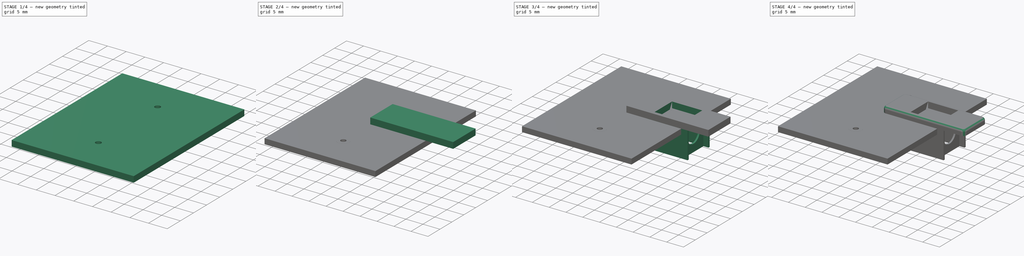
[diagram: build sequence overview — one tinted view per stage of 4, left to right]
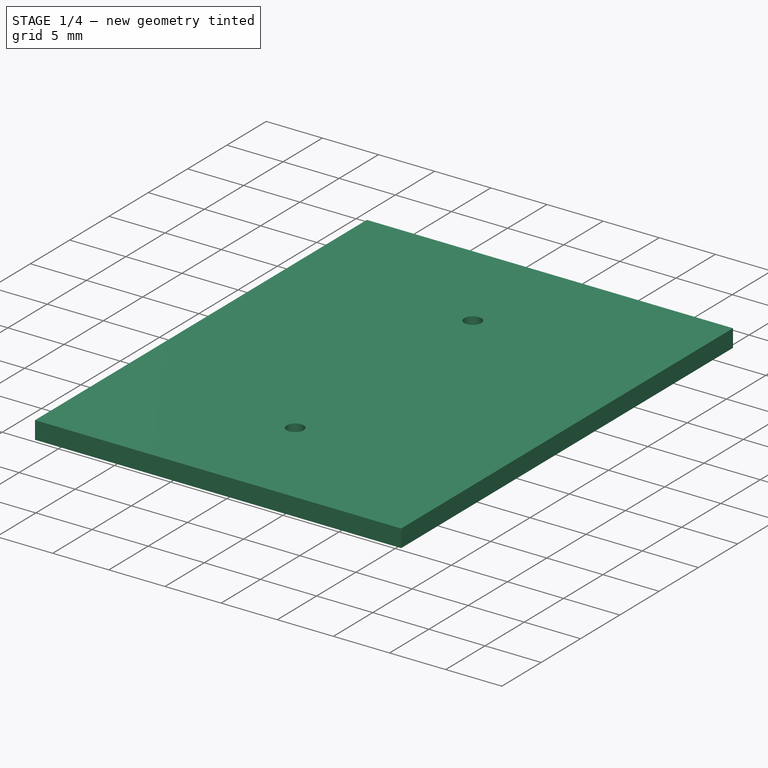
[diagram: stage 1 of 4 — iso view after this stage's code; geometry added in this stage tinted green]
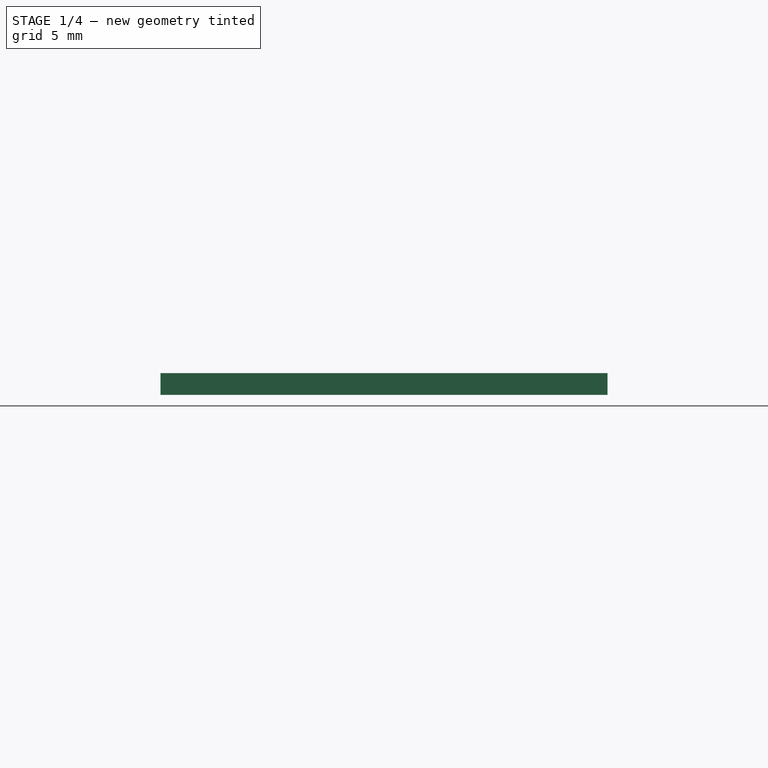
[diagram: stage 1 of 4 — front view after this stage's code; geometry added in this stage tinted green]
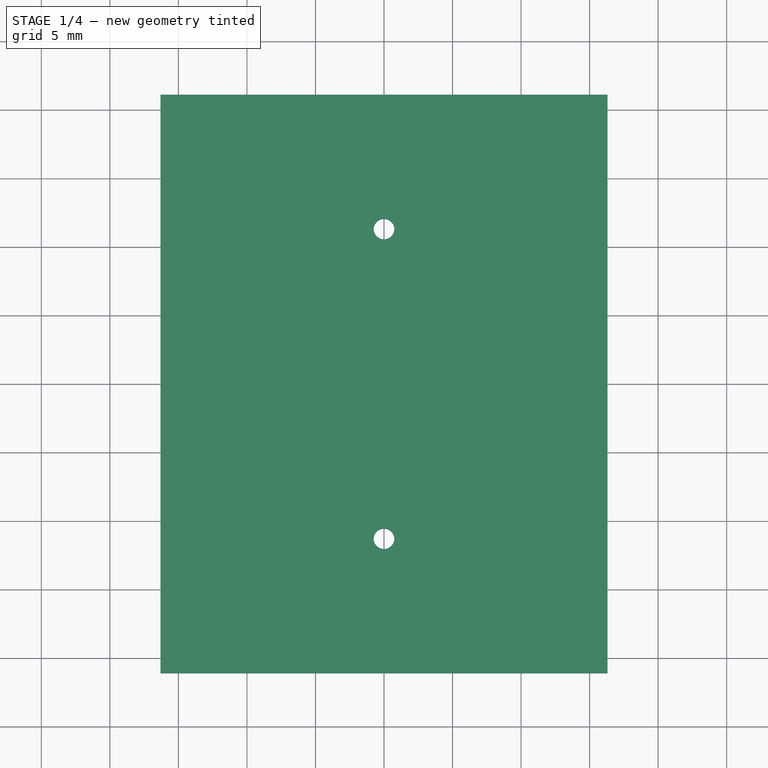
[diagram: stage 1 of 4 — top view after this stage's code; geometry added in this stage tinted green]
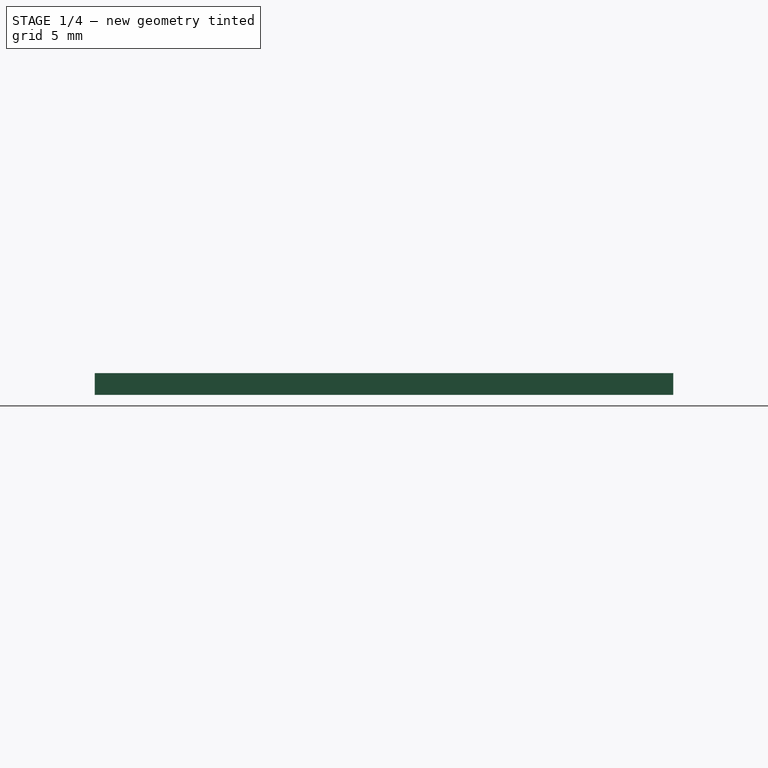
[diagram: stage 1 of 4 — right view after this stage's code; geometry added in this stage tinted green]
FCSTD DOCUMENT  (FreeCAD 0.17R13522 (Git))
Label: FUSE-COVER-BS232_ksu
License: All rights reserved
LicenseURL: http://fr.wikipedia.org/wiki/<copyright redacted>
objects: Part::FeaturePython×6, Sketcher::SketchObject×4, PartDesign::Pad×2, PartDesign::Pocket×2, PartDesign::Fillet×2, Spreadsheet::Sheet×1, App::DocumentObjectGroup×1, Part::Feature×1
note: 21 computed .brp shape members not serialized (recipe doc carries the construction recipe); baked Part::Feature solids carry a one-line shape summary decoded from their .brp

FEATURE [Part::FeaturePython] THPs  label="PTHs"  # a2plus imported part (geometry in sourceFile) (typed FeaturePython)
  Placement = pos=(0,0,0) rot=(0,0,1;1.5708rad)
  fixedPosition = true
FEATURE [Part::FeaturePython] newPCB  label="Pcb"  # a2plus imported part (geometry in sourceFile) (typed FeaturePython)
  Placement = pos=(0,0,0) rot=(0,0,1;1.5708rad)
  fixedPosition = true
FEATURE [App::DocumentObjectGroup] FUSE_22_6_5x20_PTF78_fp
  Group = -> [FCrtYd_lines,Filk_lines,TopPads,BotPads,THPs,newPCB]
FEATURE [Part::Feature] Shape001  label="FUSE-COVER-BS232"
  shape: bbox 9.4 x 24.4 x 9.8 mm, 54 faces (baked)
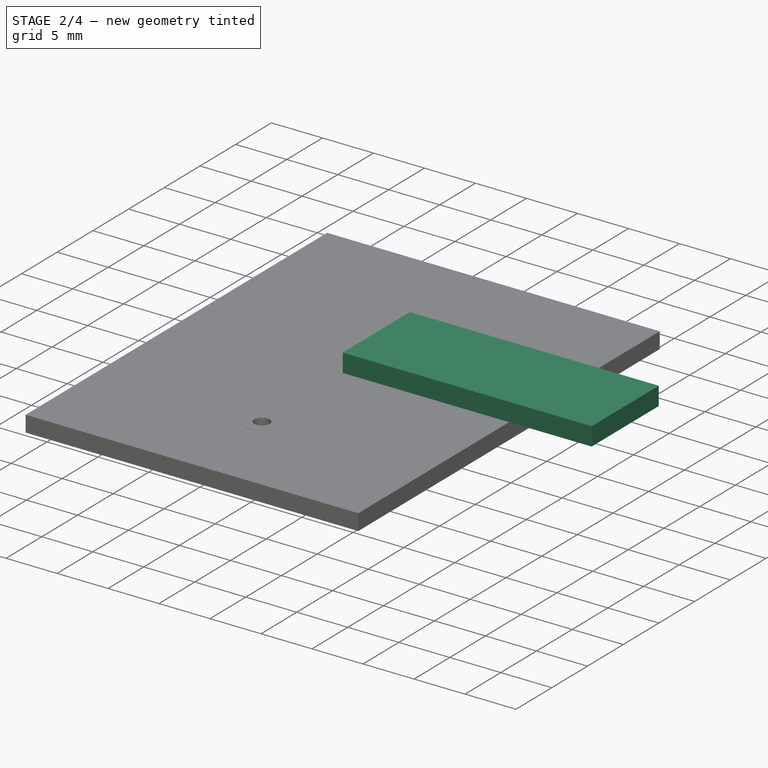
[diagram: stage 2 of 4 — iso view after this stage's code; geometry added in this stage tinted green]
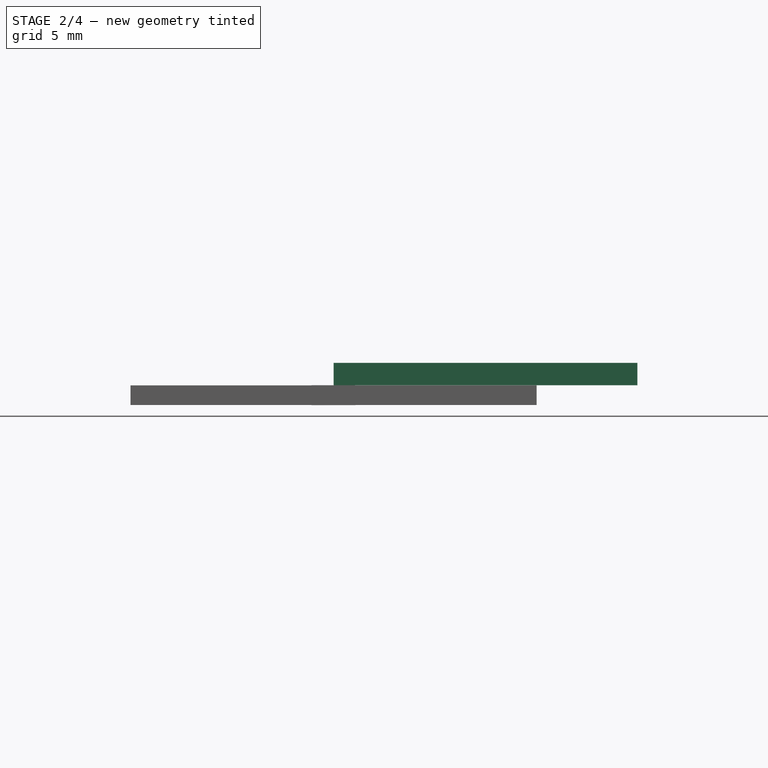
[diagram: stage 2 of 4 — front view after this stage's code; geometry added in this stage tinted green]
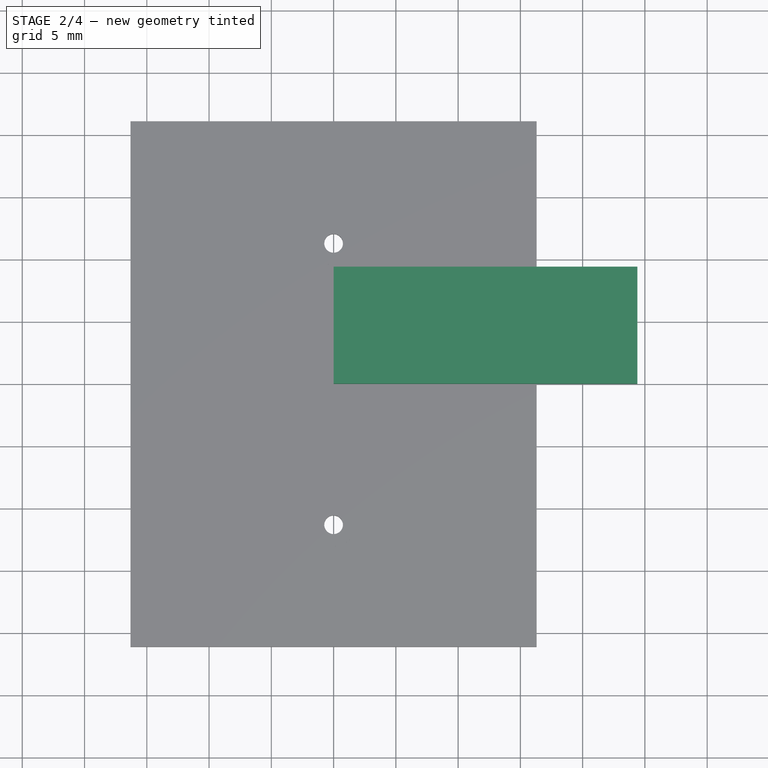
[diagram: stage 2 of 4 — top view after this stage's code; geometry added in this stage tinted green]
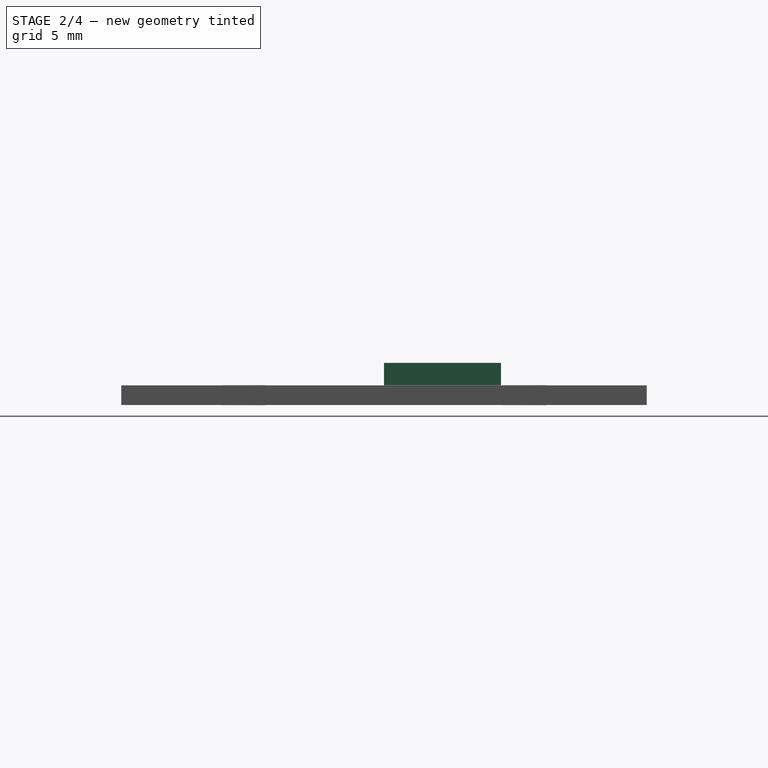
[diagram: stage 2 of 4 — right view after this stage's code; geometry added in this stage tinted green]
FEATURE [Spreadsheet::Sheet] Spreadsheet
  cells = A1=width; B1(width)=9.4000000000000004; A2=length; B2(length)=24.399999999999999; A3=thickness; B3(thickness)=1; A4=height; B4(height)=10.5; A5=opening; B5(opening)=12; A6=opening_height; B6(opening_height)=8; A7=fuse_d; B7(fuse_d)=5; A8=fuse_l; B8(fuse_l)=20; A9=pin_t; B9(pin_t)=0.5; A10=pin_w; B10(pin_w)=1.2; A11=pin_rm; B11(pin_rm)=22.600000000000001; A12=pin_l; B12(pin_l)=3.5; A13=cover_thickness; B13(cover_thickness)=1.8
FEATURE [Sketcher::SketchObject] Sketch001
  MapMode = 5
  expr: Constraints[10] = Spreadsheet.width
  expr: Constraints[9] = Spreadsheet.length
  sketch-geometry (4):
    g0: LineSegment StartX=0 StartY=9.4 StartZ=0 EndX=24.4 EndY=9.4 EndZ=0
    g1: LineSegment StartX=24.4 StartY=9.4 StartZ=0 EndX=24.4 EndY=0 EndZ=0
    g2: LineSegment StartX=24.4 StartY=0 StartZ=0 EndX=0 EndY=0 EndZ=0
    g3: LineSegment StartX=0 StartY=0 StartZ=0 EndX=0 EndY=9.4 EndZ=0
  constraints (11):
    c: Coincident(g0,g1)
    c: Coincident(g1,g2)
    c: Coincident(g2,g3)
    c: Coincident(g3,g0)
    c: Horizontal(g0)
    c: Horizontal(g2)
    c: Vertical(g1)
    c: Vertical(g3)
    c: Coincident(g2,g-1)
    c: DistanceX(g0) = 24.4
    c: DistanceY(g0) = 9.4
FEATURE [PartDesign::Pad] Pad
  Length = 1.8
  Length2 = 100
  Profile = -> Sketch001
  Type = 0
  expr: Length = Spreadsheet.cover_thickness
FEATURE [Part::FeaturePython] FCrtYd_lines  label="FCrtYd"  # a2plus imported part (geometry in sourceFile) (typed FeaturePython)
  Placement = pos=(0,0,0) rot=(0,0,1;1.5708rad)
  fixedPosition = true
FEATURE [Part::FeaturePython] Filk_lines  label="FrontSilk"  # a2plus imported part (geometry in sourceFile) (typed FeaturePython)
  Placement = pos=(0,0,0) rot=(0,0,1;1.5708rad)
  fixedPosition = true
FEATURE [Part::FeaturePython] TopPads  # a2plus imported part (geometry in sourceFile) (typed FeaturePython)
  Placement = pos=(0,0,0) rot=(0,0,1;1.5708rad)
  fixedPosition = true
FEATURE [Part::FeaturePython] BotPads  # a2plus imported part (geometry in sourceFile) (typed FeaturePython)
  Placement = pos=(0,0,0) rot=(0,0,1;1.5708rad)
  fixedPosition = true
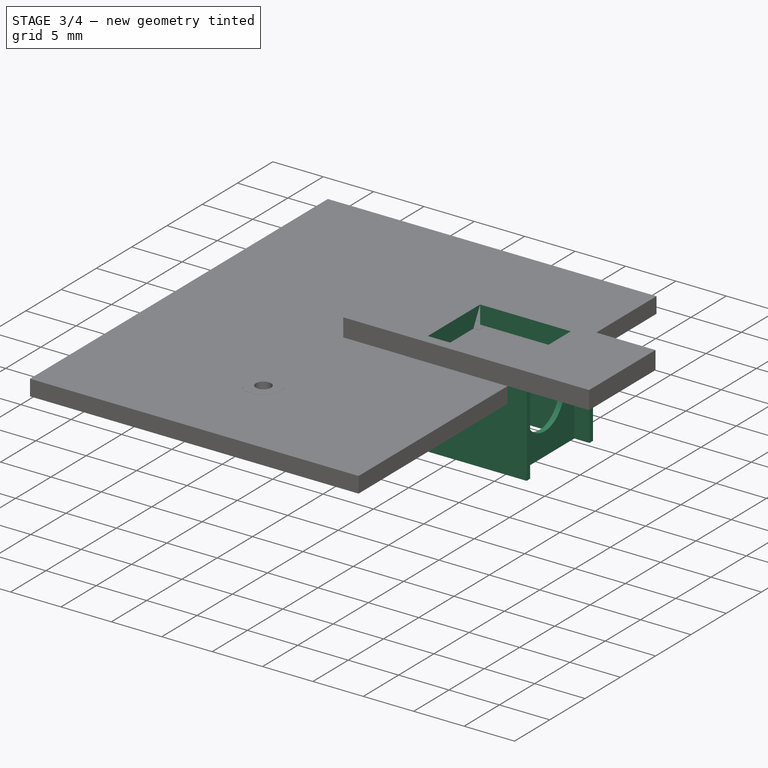
[diagram: stage 3 of 4 — iso view after this stage's code; geometry added in this stage tinted green]
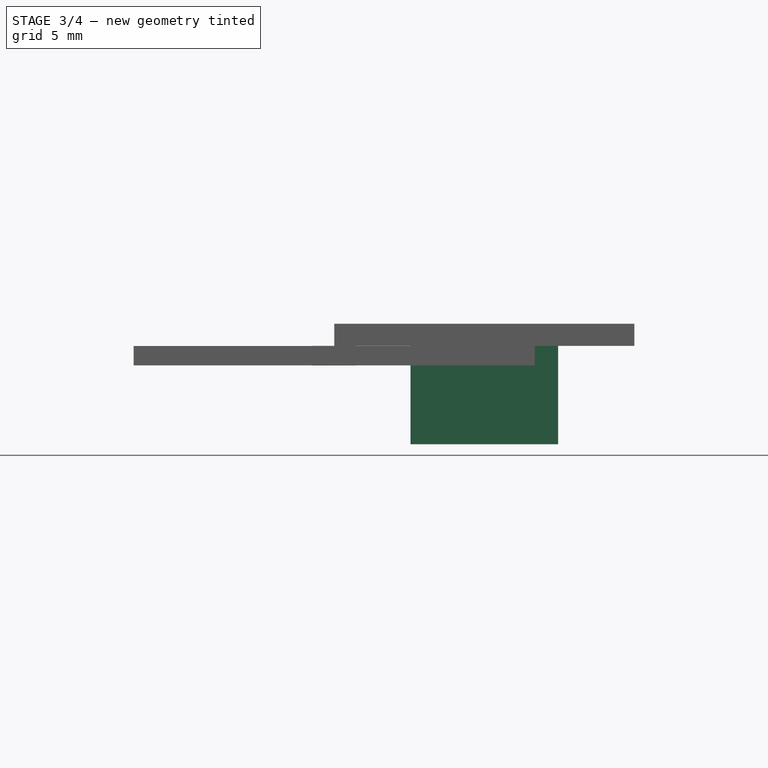
[diagram: stage 3 of 4 — front view after this stage's code; geometry added in this stage tinted green]
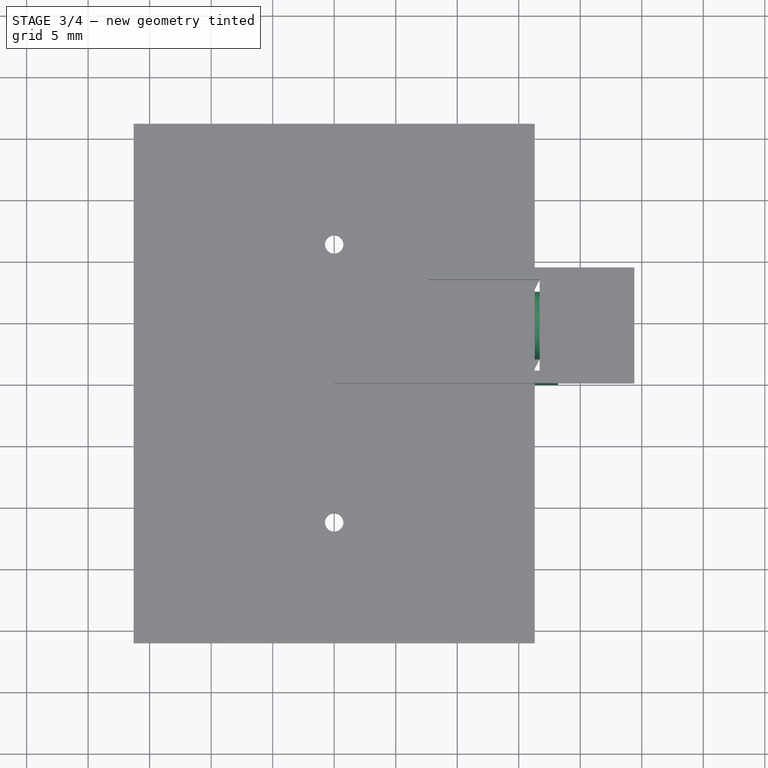
[diagram: stage 3 of 4 — top view after this stage's code; geometry added in this stage tinted green]
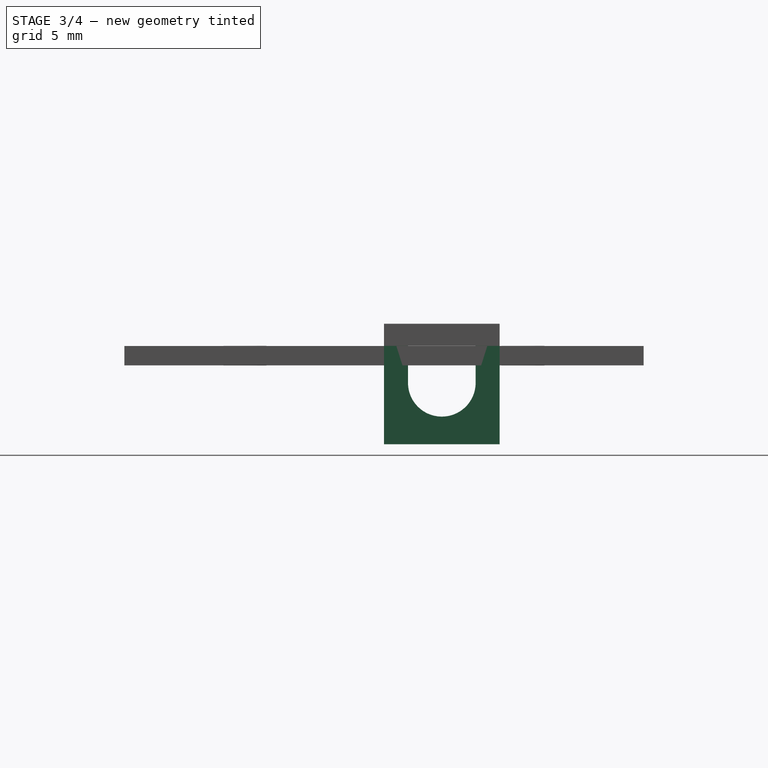
[diagram: stage 3 of 4 — right view after this stage's code; geometry added in this stage tinted green]
FEATURE [Sketcher::SketchObject] Sketch
  MapMode = 5
  Placement = pos=(0,0,0) rot=(1,0,0;3.14159rad)
  Support = -> [Pad]
  expr: Constraints[45] = Spreadsheet.thickness / 2
  expr: Constraints[44] = Spreadsheet.thickness / 2
  expr: Constraints[47] = (Spreadsheet.length - 9) / 2
  expr: Constraints[39] = Spreadsheet.thickness / 2
  expr: Constraints[46] = Spreadsheet.width
  expr: Constraints[38] = Spreadsheet.thickness / 2
  expr: Constraints[34] = (Spreadsheet.length - Spreadsheet.opening) / 2
  expr: Constraints[33] = Spreadsheet.opening
  sketch-geometry (16):
    g0: LineSegment StartX=6.2 StartY=0 StartZ=0 EndX=6.2 EndY=-0.5 EndZ=0
    g1: LineSegment StartX=6.2 StartY=-0.5 StartZ=0 EndX=7.7 EndY=-0.5 EndZ=0
    g2: LineSegment StartX=7.7 StartY=-0.5 StartZ=0 EndX=7.7 EndY=-8.9 EndZ=0
    g3: LineSegment StartX=7.7 StartY=-8.9 StartZ=0 EndX=6.2 EndY=-8.9 EndZ=0
    g4: LineSegment StartX=6.2 StartY=-8.9 StartZ=0 EndX=6.2 EndY=-9.4 EndZ=0
    g5: LineSegment StartX=6.2 StartY=-9.4 StartZ=0 EndX=18.2 EndY=-9.4 EndZ=0
    g6: LineSegment StartX=18.2 StartY=-9.4 StartZ=0 EndX=18.2 EndY=-8.9 EndZ=0
    g7: LineSegment StartX=18.2 StartY=-8.9 StartZ=0 EndX=16.7 EndY=-8.9 EndZ=0
    g8: LineSegment StartX=16.7 StartY=-8.9 StartZ=0 EndX=16.7 EndY=-0.5 EndZ=0
    g9: LineSegment StartX=16.7 StartY=-0.5 StartZ=0 EndX=18.2 EndY=-0.5 EndZ=0
    g10: LineSegment StartX=18.2 StartY=-0.5 StartZ=0 EndX=18.2 EndY=0 EndZ=0
    g11: LineSegment StartX=18.2 StartY=0 StartZ=0 EndX=6.2 EndY=0 EndZ=0
    g12: LineSegment StartX=8.2 StartY=-0.5 StartZ=0 EndX=16.2 EndY=-0.5 EndZ=0
    g13: LineSegment StartX=16.2 StartY=-0.5 StartZ=0 EndX=16.2 EndY=-8.9 EndZ=0
    g14: LineSegment StartX=16.2 StartY=-8.9 StartZ=0 EndX=8.2 EndY=-8.9 EndZ=0
    g15: LineSegment StartX=8.2 StartY=-8.9 StartZ=0 EndX=8.2 EndY=-0.5 EndZ=0
  constraints (48):
    c: PointOnObject(g0,g-1)
    c: Vertical(g0)
    c: Coincident(g0,g1)
    c: Horizontal(g1)
    c: Coincident(g1,g2)
    c: Vertical(g2)
    c: Coincident(g2,g3)
    c: Horizontal(g3)
    c: Coincident(g3,g4)
    c: Vertical(g4)
    c: Coincident(g4,g5)
    c: Horizontal(g5)
    c: Coincident(g5,g6)
    c: Vertical(g6)
    c: Coincident(g6,g7)
    c: Horizontal(g7)
    c: Coincident(g7,g8)
    c: Vertical(g8)
    c: Coincident(g8,g9)
    c: Horizontal(g9)
    c: Coincident(g9,g10)
    c: PointOnObject(g10,g-1)
    c: Vertical(g10)
    c: Coincident(g10,g11)
    c: Coincident(g11,g0)
    c: Coincident(g12,g13)
    c: Coincident(g13,g14)
    c: Coincident(g14,g15)
    c: Coincident(g15,g12)
    c: Horizontal(g12)
    c: Horizontal(g14)
    c: Vertical(g13)
    c: Vertical(g15)
    c: DistanceX(g11,g11) = 12
    c: DistanceX(g-1,g0) = 6.2
    c: Vertical(g0,g3)
    c: Vertical(g9,g6)
    c: DistanceX(g1,g8) = 9
    c: DistanceY(g0,g0) = 0.5
    c: DistanceY(g4,g4) = 0.5
    c: Horizontal(g14,g2)
    c: Horizontal(g13,g7)
    c: Horizontal(g1,g12)
    c: Horizontal(g12,g8)
    c: DistanceX(g1,g12) = 0.5
    c: DistanceX(g12,g8) = 0.5
    c: DistanceY(g4,g-1) = 9.4
    c: DistanceX(g-1,g1) = 7.7
FEATURE [PartDesign::Pad] Pad001
  BaseFeature = -> Pad
  Length = 8
  Length2 = 100
  Profile = -> Sketch
  Type = 0
  expr: Length = Spreadsheet.opening_height
FEATURE [Sketcher::SketchObject] Sketch002
  MapMode = 5
  Placement = pos=(0,0,0) rot=(1,0,0;3.14159rad)
  Support = -> [Pad001]
  expr: Constraints[11] = Spreadsheet.width - Spreadsheet.thickness * 2
  expr: Constraints[8] = (Spreadsheet.length - 9) / 2
  expr: Constraints[9] = -Spreadsheet.thickness
  sketch-geometry (4):
    g0: LineSegment StartX=7.7 StartY=-1 StartZ=0 EndX=16.7 EndY=-1 EndZ=0
    g1: LineSegment StartX=16.7 StartY=-1 StartZ=0 EndX=16.7 EndY=-8.4 EndZ=0
    g2: LineSegment StartX=16.7 StartY=-8.4 StartZ=0 EndX=7.7 EndY=-8.4 EndZ=0
    g3: LineSegment StartX=7.7 StartY=-8.4 StartZ=0 EndX=7.7 EndY=-1 EndZ=0
  constraints (12):
    c: Coincident(g0,g1)
    c: Coincident(g1,g2)
    c: Coincident(g2,g3)
    c: Coincident(g3,g0)
    c: Horizontal(g0)
    c: Horizontal(g2)
    c: Vertical(g1)
    c: Vertical(g3)
    c: DistanceX(g0) = 7.7
    c: DistanceY(g0) = -1
    c: DistanceX(g0,g0) = 9
    c: DistanceY(g3,g3) = 7.4
FEATURE [PartDesign::Pocket] Pocket
  BaseFeature = -> Pad001
  Length = 1.8
  Length2 = 100
  Profile = -> Sketch002
  Type = 0
  expr: Length = Spreadsheet.cover_thickness
FEATURE [Sketcher::SketchObject] Sketch004
  MapMode = 5
  Placement = pos=(7.7,0,0) rot=(0.57735,-0.57735,-0.57735;2.0944rad)
  expr: Constraints[11] = Spreadsheet.fuse_d / 2 + 0.5
  expr: Constraints[10] = Spreadsheet.width / 2
  expr: Constraints[7] = Spreadsheet.fuse_d + 0.5
  sketch-geometry (4):
    g0: LineSegment StartX=-7.45 StartY=-3 StartZ=0 EndX=-7.45 EndY=0 EndZ=0
    g1: LineSegment StartX=-7.45 StartY=0 StartZ=0 EndX=-1.95 EndY=0 EndZ=0
    g2: LineSegment StartX=-1.95 StartY=0 StartZ=0 EndX=-1.95 EndY=-3 EndZ=0
    g3: ArcOfCircle CenterX=-4.7 CenterY=-3 CenterZ=0 NormalX=0 NormalY=0 NormalZ=1 AngleXU=0 Radius=2.75 StartAngle=3.14159 EndAngle=6.28319
  constraints (12):
    c: PointOnObject(g0,g-1)
    c: Vertical(g0)
    c: Coincident(g0,g1)
    c: Horizontal(g1)
    c: Coincident(g1,g2)
    c: Vertical(g2)
    c: Horizontal(g0,g2)
    c: DistanceX(g1,g1) = 5.5
    c: Tangent(g3,g0) = 1.5708
    c: Tangent(g3,g2) = 1.5708
    c: DistanceX(g3,g-1) = 4.7
    c: DistanceY(g3,g-1) = 3
FEATURE [PartDesign::Pocket] Pocket002
  BaseFeature = -> Pocket
  Length = 5
  Length2 = 100
  Profile = -> Sketch004
  Type = 1
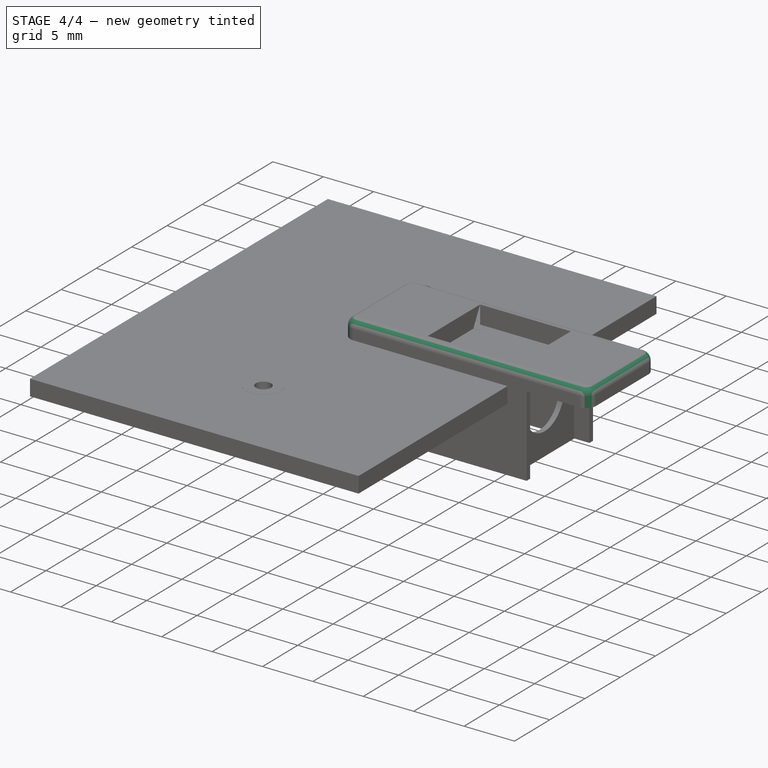
[diagram: stage 4 of 4 — iso view after this stage's code; geometry added in this stage tinted green]
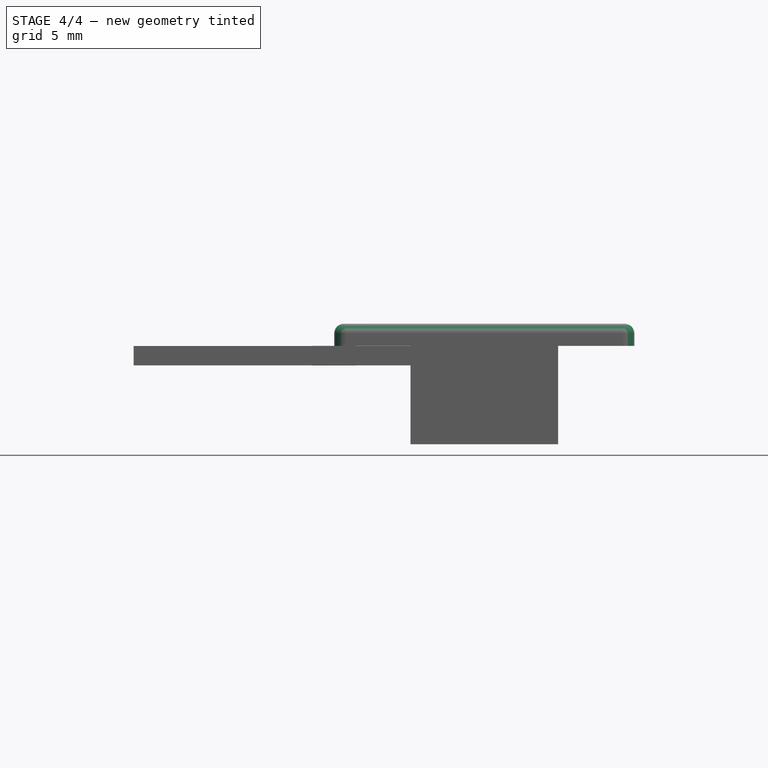
[diagram: stage 4 of 4 — front view after this stage's code; geometry added in this stage tinted green]
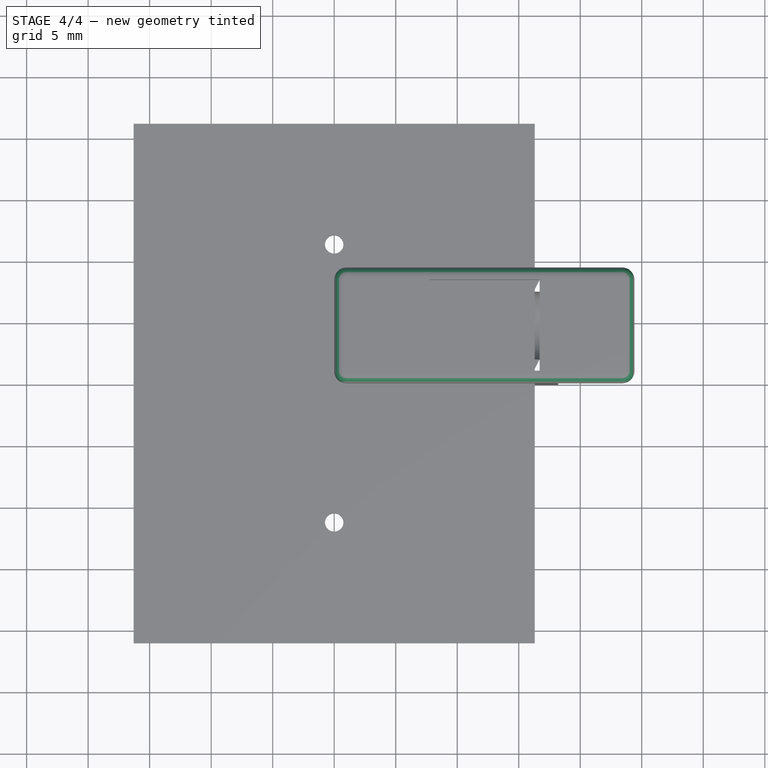
[diagram: stage 4 of 4 — top view after this stage's code; geometry added in this stage tinted green]
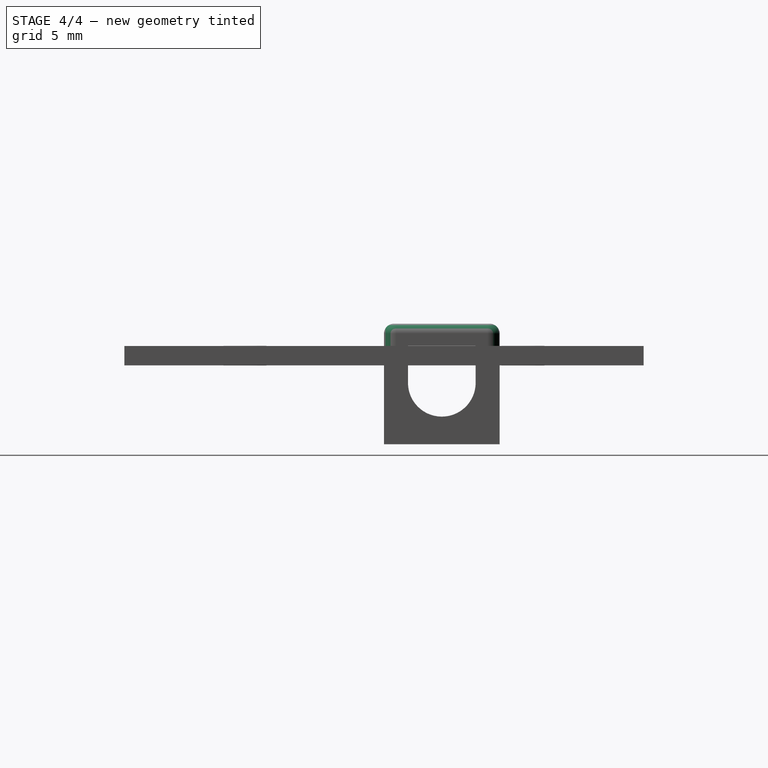
[diagram: stage 4 of 4 — right view after this stage's code; geometry added in this stage tinted green]
FEATURE [PartDesign::Fillet] Fillet
  Base = -> Pocket002 [Edge1,Edge2,Edge5,Edge13]
  BaseFeature = -> Pocket002
  Radius = 1
FEATURE [PartDesign::Fillet] Fillet001
  Base = -> Fillet [Edge19,Edge4,Edge21,Edge22,Edge23,Edge24,Edge25,Edge26]
  BaseFeature = -> Fillet
  Radius = 0.8
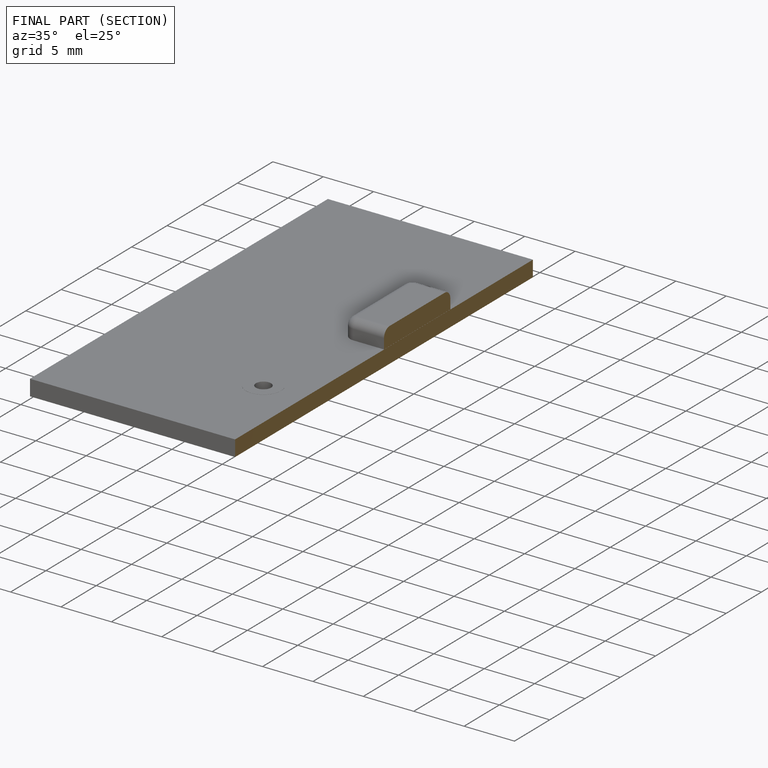
[diagram: finished part — half-section view (interior)]
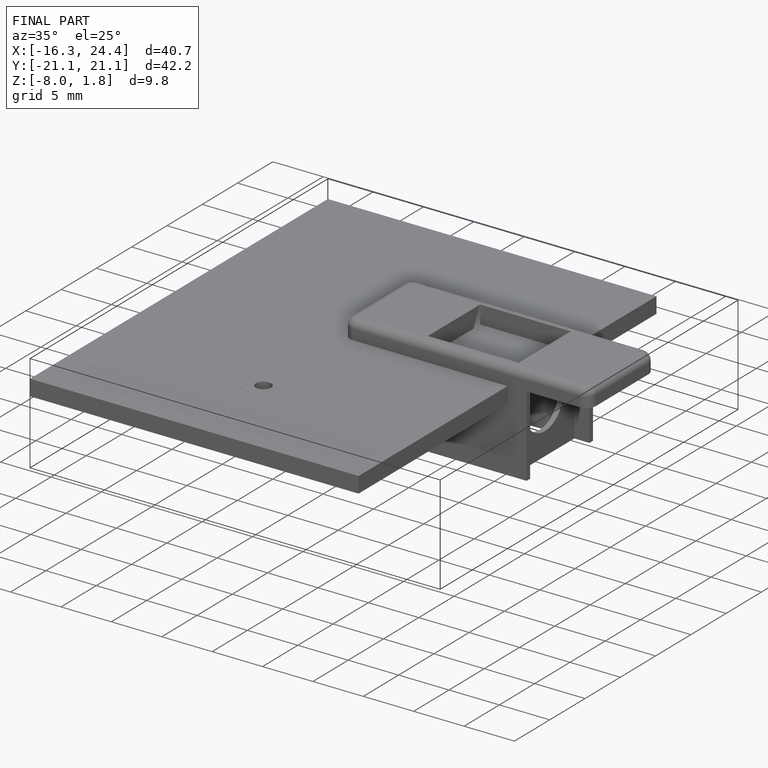
[diagram: finished part — iso view with bounding-box wireframe]
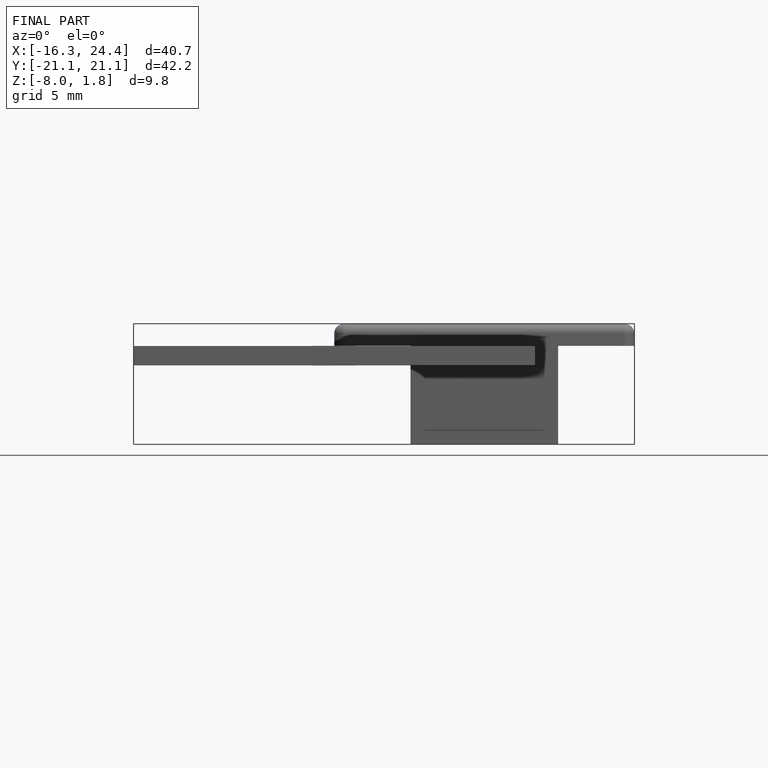
[diagram: finished part — front view with bounding-box wireframe]
